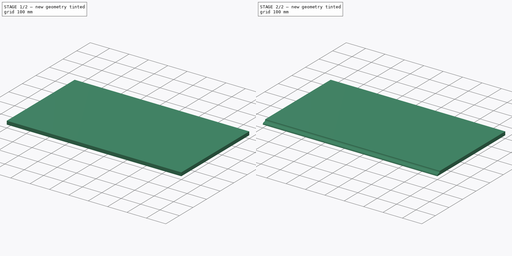
[diagram: build sequence overview — one tinted view per stage of 2, left to right]
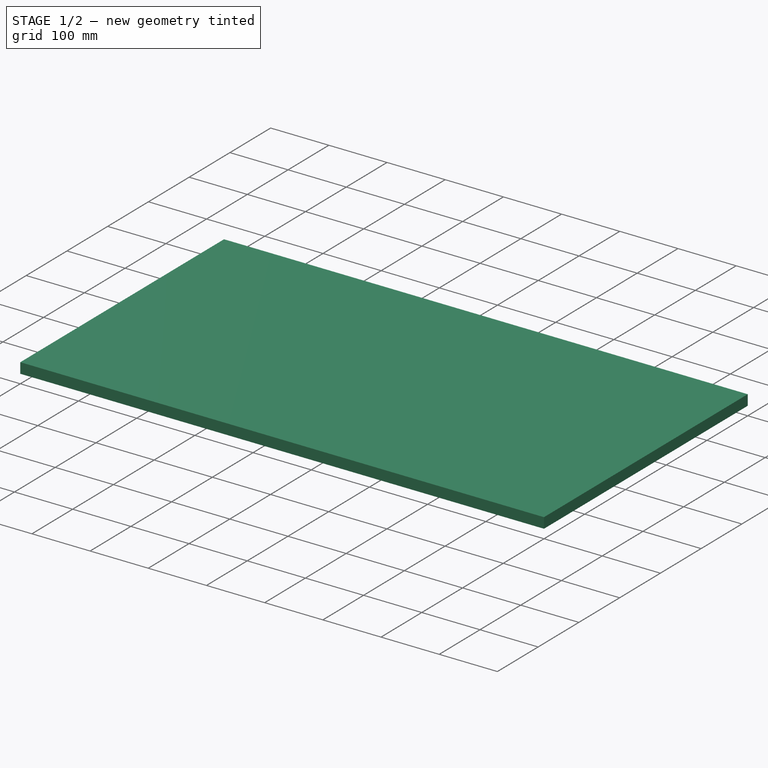
[diagram: stage 1 of 2 — iso view after this stage's code; geometry added in this stage tinted green]
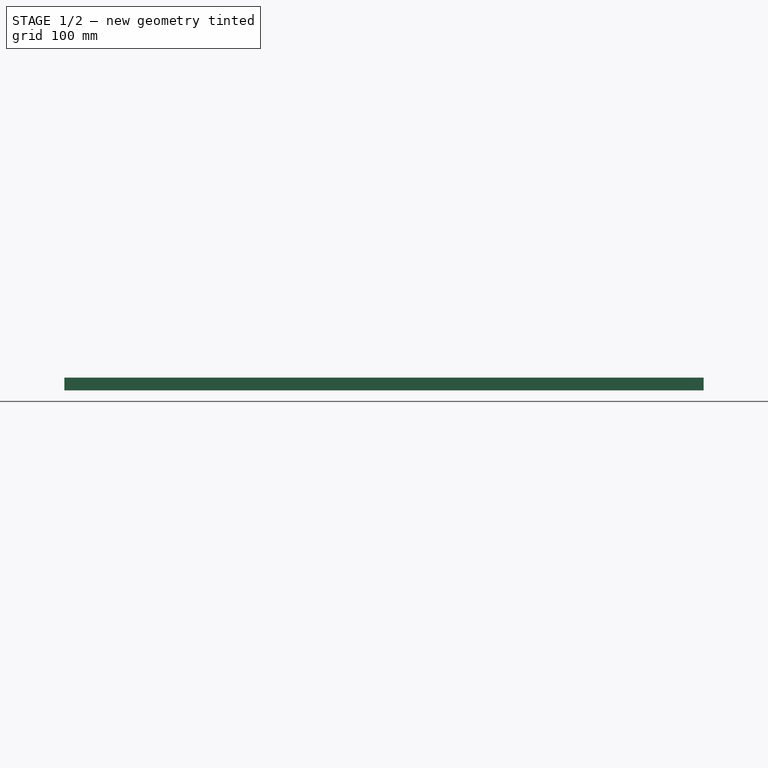
[diagram: stage 1 of 2 — front view after this stage's code; geometry added in this stage tinted green]
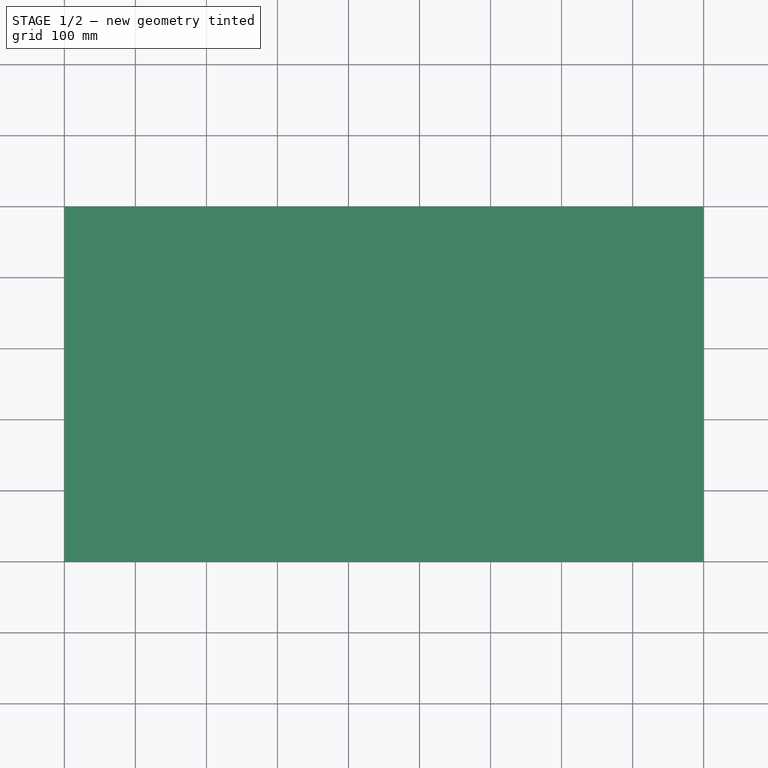
[diagram: stage 1 of 2 — top view after this stage's code; geometry added in this stage tinted green]
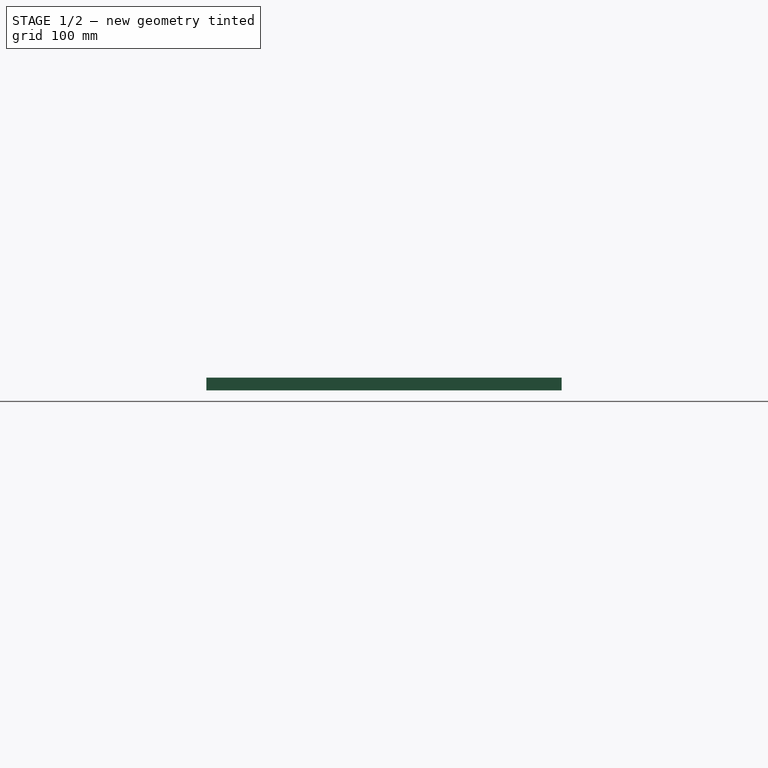
[diagram: stage 1 of 2 — right view after this stage's code; geometry added in this stage tinted green]
FCSTD DOCUMENT  (FreeCAD 1.1R20260325 (Git shallow))
Label: Top_001
License: All rights reserved
LicenseURL: http://en.wikipedia.org/wiki/All_rights_reserved
objects: App::Point×3, Sketcher::SketchObject×2, PartDesign::Pad×2, PartDesign::Body×2, Spreadsheet::Sheet×1, Part::Cut×1, App::Part×1
note: 13 computed .brp shape members not serialized (recipe doc carries the construction recipe); baked Part::Feature solids carry a one-line shape summary decoded from their .brp

FEATURE [Spreadsheet::Sheet] Spreadsheet  label="settings"
  cells = A1='Settings (set here):; A2='Top width; B2(twidth)==900 mm; A3='Top depth; B3(tdepth)==500 mm; A4='Top thickness; B4(tthick)==18 mm
FEATURE [Sketcher::SketchObject] Sketch  label="Pattern, Top"
  ArcFitTolerance = 0
  AttachmentSupport = -> [XY_Plane001]
  ExternalTypes = [0]
  FullyConstrained = true
  MakeInternals = false
  MapMode = 5
  _ExternalGeoVersion = 0
  expr: .Constraints.Top00Depth = <<settings>>.tdepth
  expr: .Constraints.Top00Width = <<settings>>.twidth
  sketch-geometry (4):
    g0: LineSegment StartX=-900 StartY=500 StartZ=0 EndX=0 EndY=500 EndZ=0
    g1: LineSegment StartX=0 StartY=500 StartZ=0 EndX=0 EndY=0 EndZ=0
    g2: LineSegment StartX=0 StartY=0 StartZ=0 EndX=-900 EndY=0 EndZ=0
    g3: LineSegment StartX=-900 StartY=0 StartZ=0 EndX=-900 EndY=500 EndZ=0
  constraints (11):
    c: Coincident(g0,g1)
    c: Coincident(g1,g2)
    c: Coincident(g2,g3)
    c: Coincident(g3,g0)
    c: Horizontal(g0)
    c: Horizontal(g2)
    c: Vertical(g1)
    c: Vertical(g3)
    c: Coincident(g1,g-1)
    c: DistanceY(g3,g3) = 500  'Top00Depth'
    c: DistanceX(g0,g0) = 900  'Top00Width'
FEATURE [PartDesign::Pad] Pad  label="Top"
  Direction = (0,0,1)
  Length = 18
  Length2 = 10
  Profile = -> Sketch
  ReferenceAxis = -> Sketch [N_Axis]
  SideType = 0
  Suppressed = false
  Type = 0
  Type2 = 0
  expr: Length = <<settings>>.tthick
FEATURE [PartDesign::Body] Body  label="Body, Top"
  AllowCompound = true
  Group = -> [Sketch,Pad]
  Origin = -> Origin001
  Tip = -> Pad
FEATURE [Sketcher::SketchObject] Sketch001  label="Pattern, Decoration, Cut"
  ArcFitTolerance = 0
  AttachmentSupport = -> [YZ_Plane002]
  ExternalTypes = [0]
  FullyConstrained = true
  MakeInternals = false
  MapMode = 5
  Placement = pos=(0,0,0) rot=(0.57735,0.57735,0.57735;2.0944rad)
  _ExternalGeoVersion = 0
  expr: Constraints[5] = <<settings>>.tthick
  expr: Constraints[6] = <<settings>>.tthick / 2
  expr: Constraints[7] = <<settings>>.tthick
  sketch-geometry (4):
    g0: ArcOfCircle CenterX=9 CenterY=18 CenterZ=0 NormalX=0 NormalY=0 NormalZ=1 AngleXU=0 Radius=9 StartAngle=4.71239 EndAngle=6.28319
    g1: ArcOfCircle CenterX=9 CenterY=0 CenterZ=0 NormalX=0 NormalY=0 NormalZ=1 AngleXU=0 Radius=9 StartAngle=1.5708 EndAngle=3.14159
    g2: LineSegment StartX=18 StartY=18 StartZ=0 EndX=0 EndY=18 EndZ=0
    g3: LineSegment StartX=0 StartY=18 StartZ=0 EndX=0 EndY=0 EndZ=0
  constraints (13):
    c: Coincident(g1,g0)
    c: Coincident(g1,g-1)
    c: Vertical(g0,g0)
    c: Vertical(g0,g1)
    c: PointOnObject(g1,g-1)
    c: DistanceY(g1,g0) = 18
    c: DistanceX(g1,g1) = 9
    c: DistanceX(g1,g0) = 18
    c: Coincident(g0,g2)
    c: Coincident(g2,g3)
    c: Coincident(g3,g1)
    c: Vertical(g3)
    c: Equal(g3,g2)
FEATURE [PartDesign::Pad] Pad001  label="Decoration, Cut"
  Direction = (1,0,0)
  Length = 900
  Length2 = 10
  Placement = pos=(0,0,0) rot=(0.57735,0.57735,0.57735;2.0944rad)
  Profile = -> Sketch001
  ReferenceAxis = -> Sketch001 [N_Axis]
  Reversed = true
  SideType = 0
  Suppressed = false
  Type = 0
  Type2 = 0
  expr: Length = <<settings>>.twidth
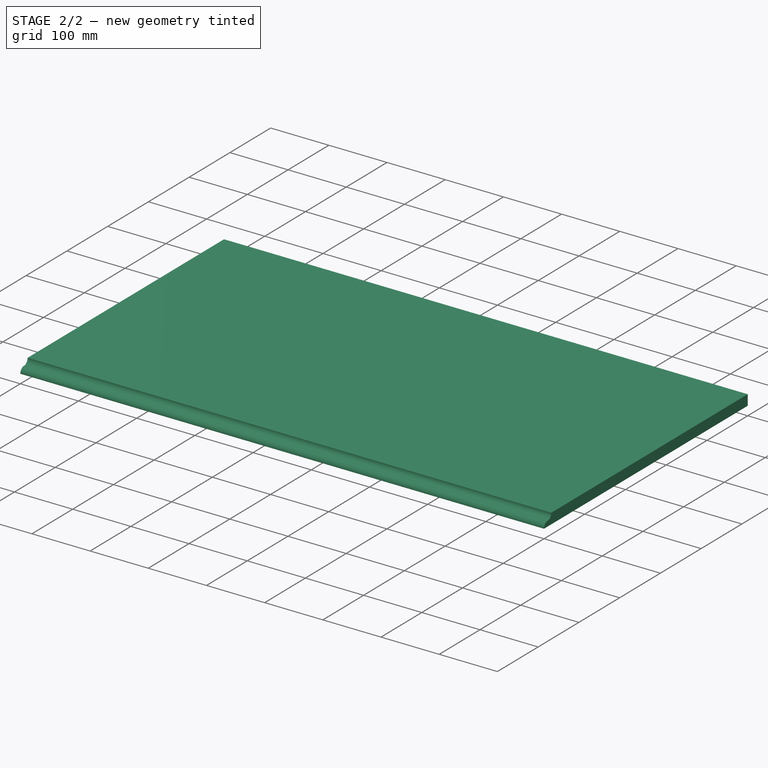
[diagram: stage 2 of 2 — iso view after this stage's code; geometry added in this stage tinted green]
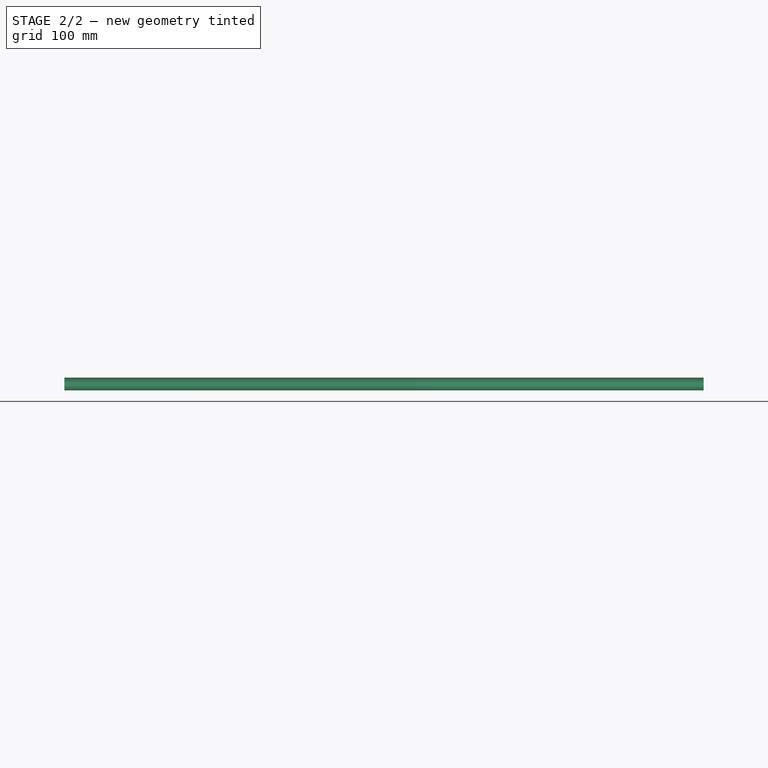
[diagram: stage 2 of 2 — front view after this stage's code; geometry added in this stage tinted green]
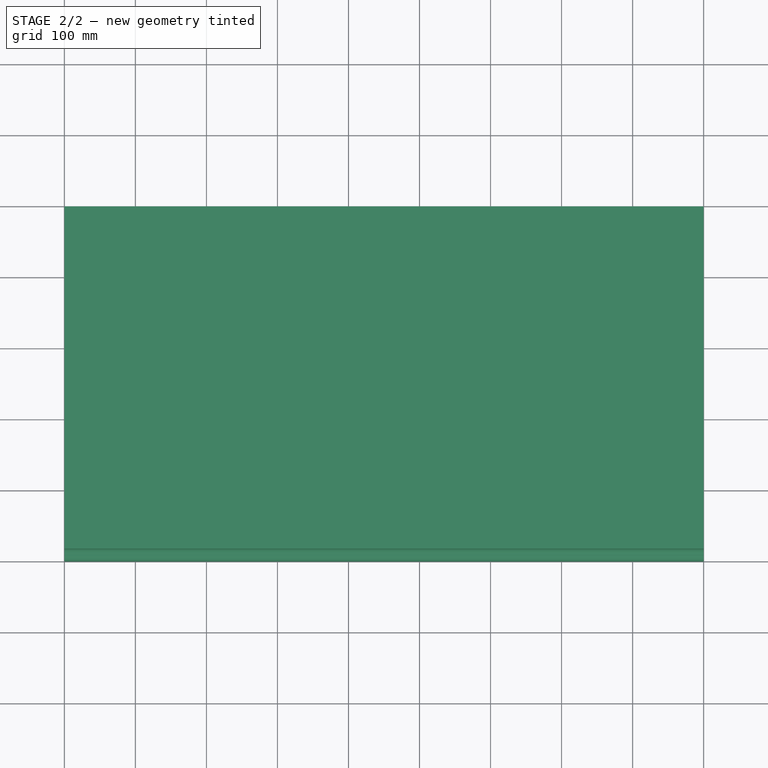
[diagram: stage 2 of 2 — top view after this stage's code; geometry added in this stage tinted green]
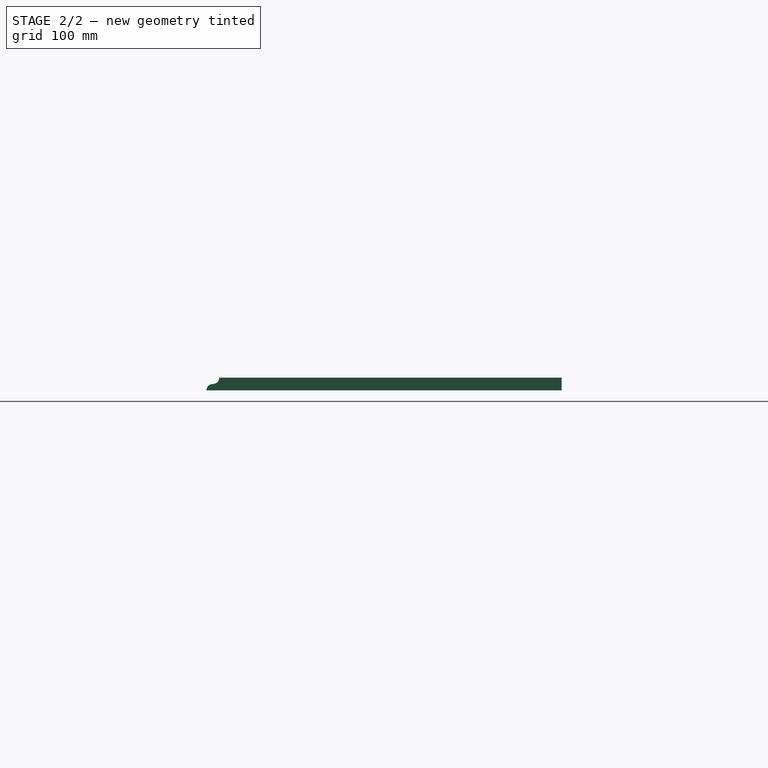
[diagram: stage 2 of 2 — right view after this stage's code; geometry added in this stage tinted green]
FEATURE [PartDesign::Body] Body001  label="Body, Decoration, Cut"
  AllowCompound = true
  Group = -> [Sketch001,Pad001]
  Origin = -> Origin002
  Tip = -> Pad001
FEATURE [Part::Cut] Cut  label="Cut, Top"
  Base = -> Body
  Texture_Repeat_X = 1
  Texture_Repeat_Y = 1
  Texture_Rotation = 0
  Texture_URL = https://upload.wikimedia.org/wikipedia/commons/d/d1/Wood_001_red_light.jpg
  Tool = -> Body001
FEATURE [App::Part] Part  label="Part, Top"
  Group = -> [Body,Body001,Cut]
  Origin = -> Origin
FEATURE [App::Point] Origin003  label="Origin"
  Role = Origin
FEATURE [App::Point] Origin004  label="Origin"
  Role = Origin
FEATURE [App::Point] Origin005  label="Origin"
  Role = Origin
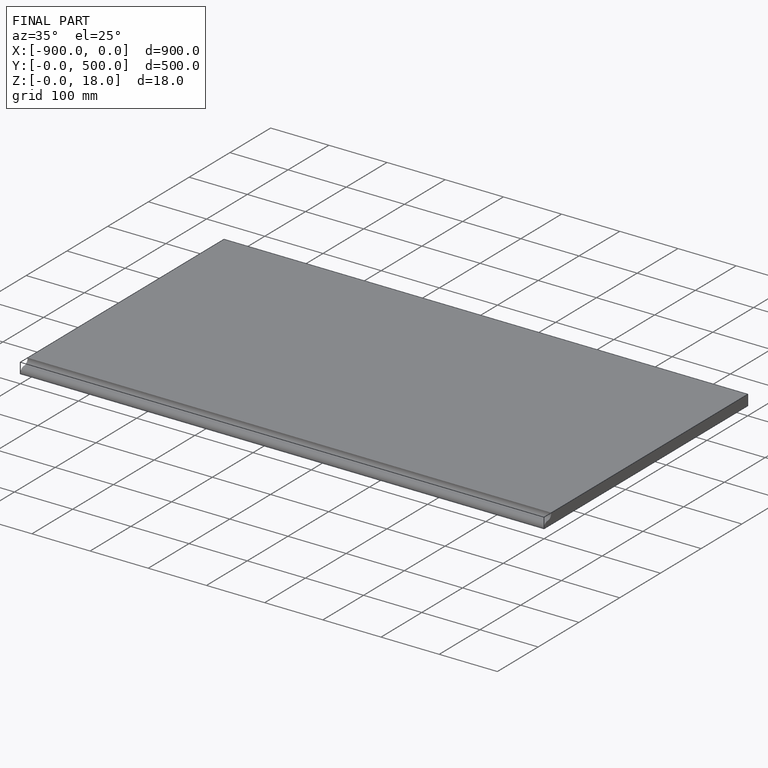
[diagram: finished part — iso view with bounding-box wireframe]
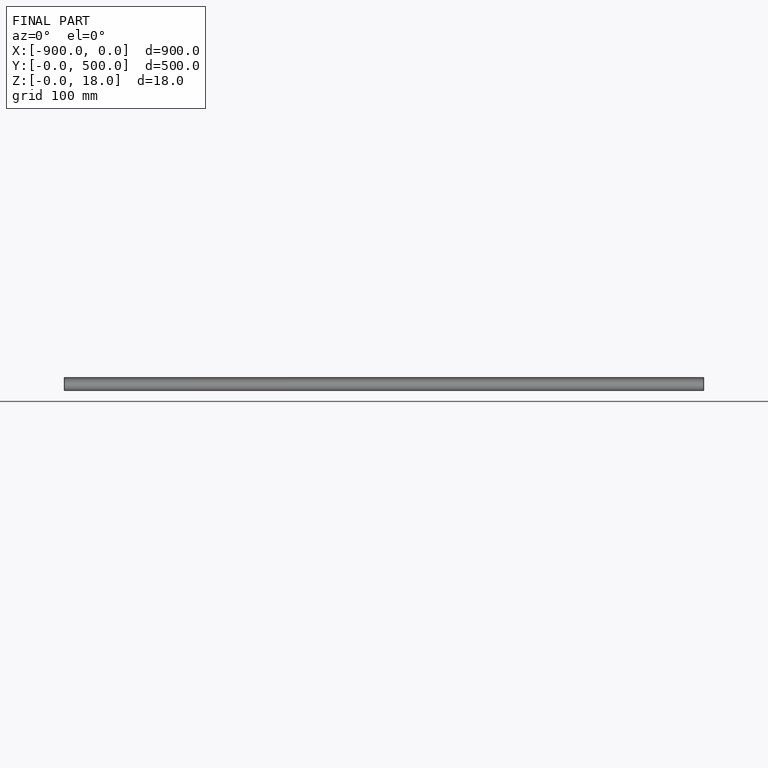
[diagram: finished part — front view with bounding-box wireframe]
